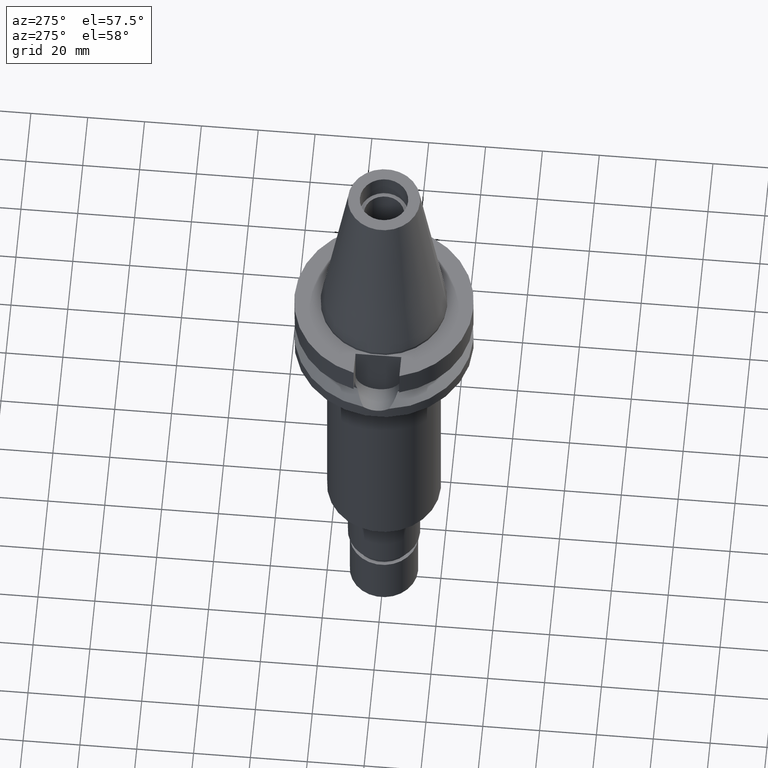
[diagram: clean part render]
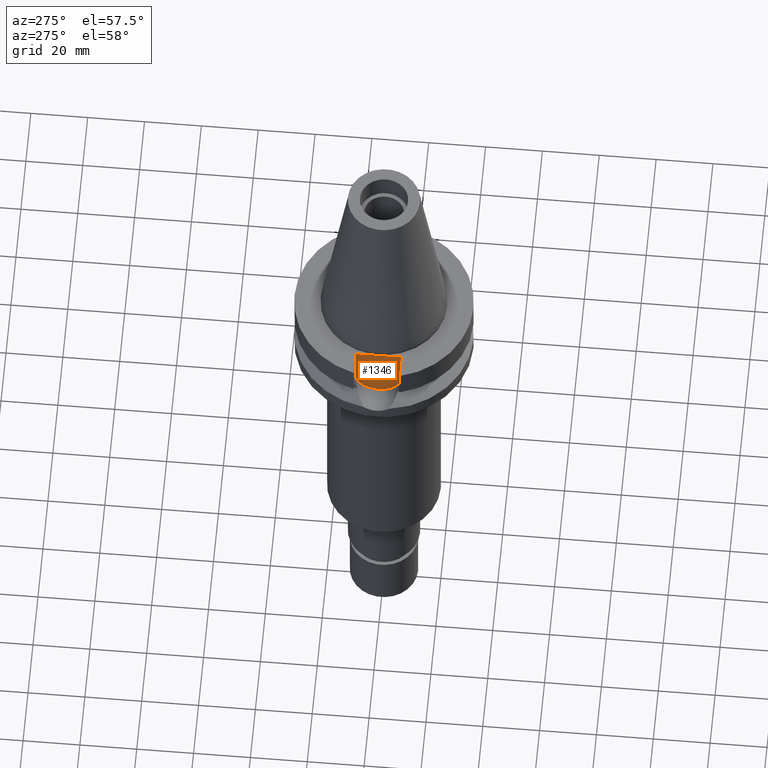
[diagram: same view with one face highlighted and labeled with its STEP entity id]
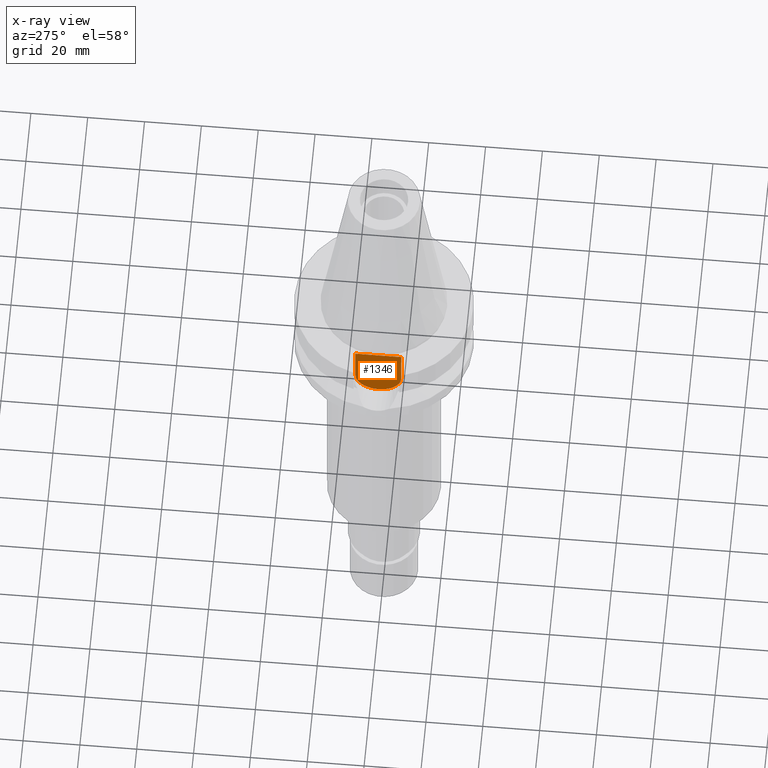
[diagram: x-ray of the same camera — body ghosted, the highlighted face saturated]
A machine part, auxiliary view. The second image highlights one B-rep face of the part: STEP entity #1346.
The next image is the same camera in x-ray: the body ghosted, the highlighted face saturated — about 0% of this face is hidden behind the body in this view.
In plain terms, the highlighted planar face has unit normal (-1, 0, 0).
Its self-contained STEP definition (entity closure, byte-faithful):
#94=DIRECTION('',(0.E0,1.E0,0.E0));
#95=VECTOR('',#94,1.61E1);
#96=CARTESIAN_POINT('',(-2.25E1,-8.05E0,-1.E0));
#97=LINE('',#96,#95);
#170=DIRECTION('',(0.E0,0.E0,-1.E0));
#171=VECTOR('',#170,1.395E1);
#172=CARTESIAN_POINT('',(-2.25E1,-8.05E0,-1.E0));
#173=LINE('',#172,#171);
#177=CARTESIAN_POINT('',(-2.25E1,1.807578675541E-14,-1.495E1));
#178=DIRECTION('',(1.E0,0.E0,0.E0));
#179=DIRECTION('',(0.E0,-1.E0,1.919789379228E-14));
#180=AXIS2_PLACEMENT_3D('',#177,#178,#179);
#185=CARTESIAN_POINT('',(-2.25E1,1.807578675541E-14,-1.495E1));
#186=DIRECTION('',(1.E0,0.E0,0.E0));
#187=DIRECTION('',(0.E0,0.E0,-1.E0));
#188=AXIS2_PLACEMENT_3D('',#185,#186,#187);
#193=DIRECTION('',(0.E0,0.E0,1.E0));
#194=VECTOR('',#193,1.395E1);
#195=CARTESIAN_POINT('',(-2.25E1,8.05E0,-1.495E1));
#196=LINE('',#195,#194);
#1086=CARTESIAN_POINT('',(-2.25E1,-8.05E0,-1.E0));
#1087=CARTESIAN_POINT('',(-2.25E1,8.05E0,-1.E0));
#1088=VERTEX_POINT('',#1086);
#1089=VERTEX_POINT('',#1087);
#1106=CARTESIAN_POINT('',(-2.25E1,-8.05E0,-1.495E1));
#1107=VERTEX_POINT('',#1106);
#1108=CARTESIAN_POINT('',(-2.25E1,1.856870709207E-14,-2.3E1));
#1109=CARTESIAN_POINT('',(-2.25E1,8.05E0,-1.495E1));
#1110=VERTEX_POINT('',#1108);
#1111=VERTEX_POINT('',#1109);
#1330=CARTESIAN_POINT('',(-2.25E1,2.173748068487E-14,0.E0));
#1331=DIRECTION('',(-1.E0,0.E0,0.E0));
#1332=DIRECTION('',(0.E0,0.E0,-1.E0));
#1333=AXIS2_PLACEMENT_3D('',#1330,#1331,#1332);
#1334=PLANE('',#1333);
#1335=ORIENTED_EDGE('',*,*,#1303,.F.);
#1337=ORIENTED_EDGE('',*,*,#1336,.T.);
#1339=ORIENTED_EDGE('',*,*,#1338,.T.);
#1341=ORIENTED_EDGE('',*,*,#1340,.T.);
#1343=ORIENTED_EDGE('',*,*,#1342,.T.);
#1344=EDGE_LOOP('',(#1335,#1337,#1339,#1341,#1343));
#1345=FACE_OUTER_BOUND('',#1344,.F.);
#181=CIRCLE('',#180,8.05E0);
#189=CIRCLE('',#188,8.05E0);
#1303=EDGE_CURVE('',#1088,#1089,#97,.T.);
#1336=EDGE_CURVE('',#1088,#1107,#173,.T.);
#1338=EDGE_CURVE('',#1107,#1110,#181,.T.);
#1340=EDGE_CURVE('',#1110,#1111,#189,.T.);
#1342=EDGE_CURVE('',#1111,#1089,#196,.T.);
#1346=ADVANCED_FACE('',(#1345),#1334,.T.);